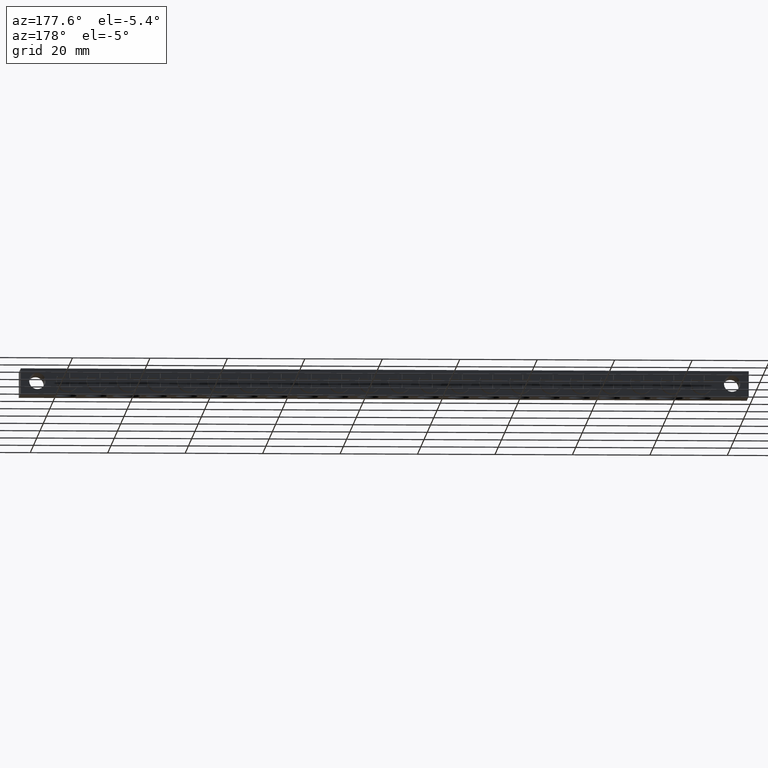
[diagram: clean part render]
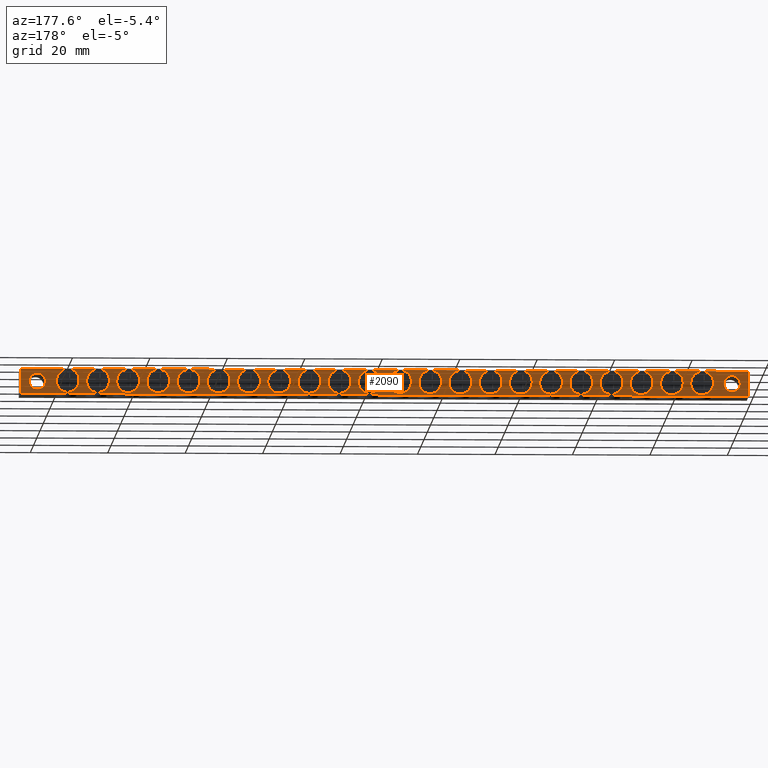
[diagram: same view with one face highlighted and labeled with its STEP entity id]
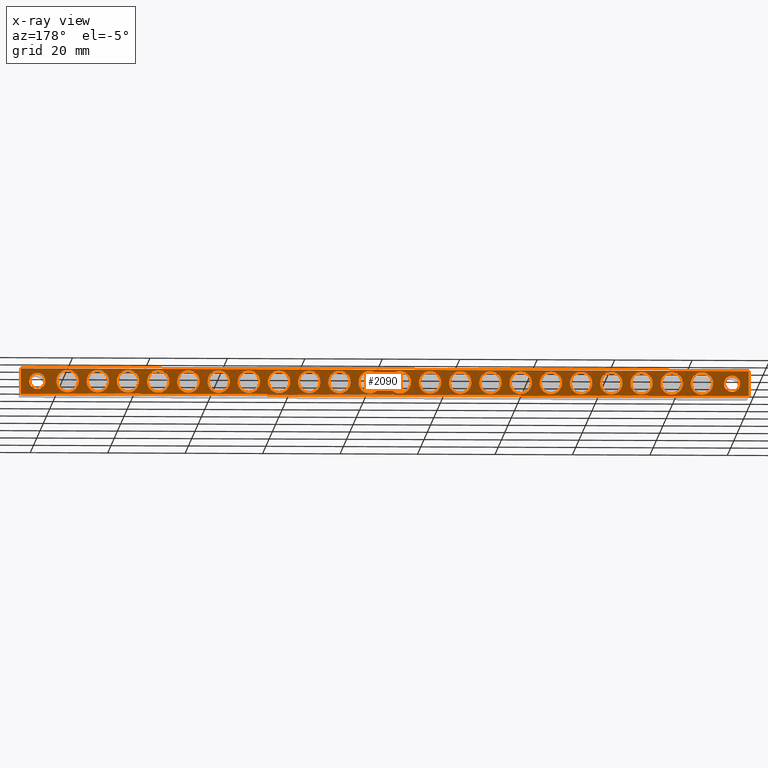
[diagram: x-ray of the same camera — body ghosted, the highlighted face saturated]
A machine part, auxiliary view. The second image highlights one B-rep face of the part: STEP entity #2090.
The next image is the same camera in x-ray: the body ghosted, the highlighted face saturated — about 0% of this face is hidden behind the body in this view.
In plain terms, the highlighted planar face has unit normal (0, -1, 0).
Its self-contained STEP definition (entity closure, byte-faithful):
#426 = ORIENTED_EDGE ( 'NONE', *, *, #9454, .F. ) ;
#444 = ORIENTED_EDGE ( 'NONE', *, *, #3081, .F. ) ;
#452 = AXIS2_PLACEMENT_3D ( 'NONE', #12441, #12443, #12444 ) ;
#474 = ORIENTED_EDGE ( 'NONE', *, *, #9441, .F. ) ;
#481 = ORIENTED_EDGE ( 'NONE', *, *, #3045, .F. ) ;
#508 = ORIENTED_EDGE ( 'NONE', *, *, #3189, .F. ) ;
#507 = CIRCLE ( 'NONE', #528, 2.899999999999999900 ) ;
#517 = ORIENTED_EDGE ( 'NONE', *, *, #3142, .F. ) ;
#519 = ORIENTED_EDGE ( 'NONE', *, *, #3058, .F. ) ;
#520 = CIRCLE ( 'NONE', #452, 2.899999999999999900 ) ;
#521 = ORIENTED_EDGE ( 'NONE', *, *, #3037, .F. ) ;
#522 = ORIENTED_EDGE ( 'NONE', *, *, #3151, .F. ) ;
#526 = ORIENTED_EDGE ( 'NONE', *, *, #3196, .F. ) ;
#527 = ORIENTED_EDGE ( 'NONE', *, *, #3183, .F. ) ;
#528 = AXIS2_PLACEMENT_3D ( 'NONE', #12495, #12454, #12486 ) ;
#530 = ORIENTED_EDGE ( 'NONE', *, *, #3033, .F. ) ;
#545 = ORIENTED_EDGE ( 'NONE', *, *, #3005, .F. ) ;
#546 = ORIENTED_EDGE ( 'NONE', *, *, #3132, .F. ) ;
#551 = ORIENTED_EDGE ( 'NONE', *, *, #9438, .F. ) ;
#567 = ORIENTED_EDGE ( 'NONE', *, *, #3060, .F. ) ;
#625 = CIRCLE ( 'NONE', #631, 2.899999999999999900 ) ;
#631 = AXIS2_PLACEMENT_3D ( 'NONE', #12652, #12609, #12659 ) ;
#708 = ORIENTED_EDGE ( 'NONE', *, *, #2484, .F. ) ;
#709 = ORIENTED_EDGE ( 'NONE', *, *, #3063, .F. ) ;
#720 = ORIENTED_EDGE ( 'NONE', *, *, #3080, .F. ) ;
#722 = ORIENTED_EDGE ( 'NONE', *, *, #9418, .F. ) ;
#737 = ORIENTED_EDGE ( 'NONE', *, *, #9437, .F. ) ;
#740 = ORIENTED_EDGE ( 'NONE', *, *, #2229, .F. ) ;
#743 = ORIENTED_EDGE ( 'NONE', *, *, #2455, .F. ) ;
#742 = AXIS2_PLACEMENT_3D ( 'NONE', #6290, #6258, #6285 ) ;
#744 = ORIENTED_EDGE ( 'NONE', *, *, #2537, .F. ) ;
#746 = ORIENTED_EDGE ( 'NONE', *, *, #9433, .F. ) ;
#751 = ORIENTED_EDGE ( 'NONE', *, *, #9430, .F. ) ;
#756 = ORIENTED_EDGE ( 'NONE', *, *, #9435, .F. ) ;
#759 = ORIENTED_EDGE ( 'NONE', *, *, #9455, .F. ) ;
#760 = AXIS2_PLACEMENT_3D ( 'NONE', #6241, #6233, #6242 ) ;
#762 = CIRCLE ( 'NONE', #742, 2.899999999999999900 ) ;
#763 = ORIENTED_EDGE ( 'NONE', *, *, #2521, .F. ) ;
#765 = ORIENTED_EDGE ( 'NONE', *, *, #9426, .F. ) ;
#769 = ORIENTED_EDGE ( 'NONE', *, *, #9406, .F. ) ;
#771 = ORIENTED_EDGE ( 'NONE', *, *, #9411, .F. ) ;
#773 = ORIENTED_EDGE ( 'NONE', *, *, #9409, .T. ) ;
#774 = ORIENTED_EDGE ( 'NONE', *, *, #9459, .F. ) ;
#775 = ORIENTED_EDGE ( 'NONE', *, *, #2425, .F. ) ;
#776 = ORIENTED_EDGE ( 'NONE', *, *, #9449, .F. ) ;
#777 = CIRCLE ( 'NONE', #760, 2.899999999999999900 ) ;
#778 = ORIENTED_EDGE ( 'NONE', *, *, #2515, .F. ) ;
#779 = ORIENTED_EDGE ( 'NONE', *, *, #9408, .T. ) ;
#781 = ORIENTED_EDGE ( 'NONE', *, *, #9436, .F. ) ;
#783 = ORIENTED_EDGE ( 'NONE', *, *, #2489, .F. ) ;
#785 = ORIENTED_EDGE ( 'NONE', *, *, #9421, .F. ) ;
#787 = ORIENTED_EDGE ( 'NONE', *, *, #2260, .F. ) ;
#789 = ORIENTED_EDGE ( 'NONE', *, *, #3198, .F. ) ;
#791 = ORIENTED_EDGE ( 'NONE', *, *, #9452, .F. ) ;
#792 = ORIENTED_EDGE ( 'NONE', *, *, #9432, .F. ) ;
#794 = ORIENTED_EDGE ( 'NONE', *, *, #3115, .F. ) ;
#796 = ORIENTED_EDGE ( 'NONE', *, *, #3091, .F. ) ;
#799 = ORIENTED_EDGE ( 'NONE', *, *, #9428, .F. ) ;
#801 = ORIENTED_EDGE ( 'NONE', *, *, #9399, .F. ) ;
#816 = ORIENTED_EDGE ( 'NONE', *, *, #9417, .F. ) ;
#817 = ORIENTED_EDGE ( 'NONE', *, *, #3104, .F. ) ;
#829 = ORIENTED_EDGE ( 'NONE', *, *, #2558, .F. ) ;
#882 = EDGE_LOOP ( 'NONE', ( #776, #740 ) ) ;
#899 = EDGE_LOOP ( 'NONE', ( #775, #791 ) ) ;
#903 = EDGE_LOOP ( 'NONE', ( #481, #522 ) ) ;
#911 = EDGE_LOOP ( 'NONE', ( #765, #787 ) ) ;
#913 = EDGE_LOOP ( 'NONE', ( #708, #751 ) ) ;
#915 = EDGE_LOOP ( 'NONE', ( #796, #737 ) ) ;
#918 = EDGE_LOOP ( 'NONE', ( #817, #759 ) ) ;
#921 = EDGE_LOOP ( 'NONE', ( #521, #527 ) ) ;
#924 = EDGE_LOOP ( 'NONE', ( #519, #526 ) ) ;
#926 = EDGE_LOOP ( 'NONE', ( #778, #769 ) ) ;
#927 = EDGE_LOOP ( 'NONE', ( #709, #746 ) ) ;
#928 = EDGE_LOOP ( 'NONE', ( #545, #517 ) ) ;
#929 = EDGE_LOOP ( 'NONE', ( #794, #816 ) ) ;
#932 = EDGE_LOOP ( 'NONE', ( #546, #474 ) ) ;
#934 = EDGE_LOOP ( 'NONE', ( #530, #551 ) ) ;
#936 = EDGE_LOOP ( 'NONE', ( #720, #801 ) ) ;
#937 = EDGE_LOOP ( 'NONE', ( #744, #799 ) ) ;
#938 = EDGE_LOOP ( 'NONE', ( #829, #756 ) ) ;
#941 = EDGE_LOOP ( 'NONE', ( #779, #781, #722, #773 ) ) ;
#948 = EDGE_LOOP ( 'NONE', ( #743, #774 ) ) ;
#950 = EDGE_LOOP ( 'NONE', ( #789, #771 ) ) ;
#952 = EDGE_LOOP ( 'NONE', ( #567, #508 ) ) ;
#954 = EDGE_LOOP ( 'NONE', ( #783, #785 ) ) ;
#955 = EDGE_LOOP ( 'NONE', ( #763, #792 ) ) ;
#958 = EDGE_LOOP ( 'NONE', ( #444, #426 ) ) ;
#1385 = VERTEX_POINT ( 'NONE', #11010 ) ;
#1426 = VERTEX_POINT ( 'NONE', #11001 ) ;
#1440 = VERTEX_POINT ( 'NONE', #11087 ) ;
#1442 = VERTEX_POINT ( 'NONE', #11079 ) ;
#1685 = CIRCLE ( 'NONE', #1697, 2.899999999999999900 ) ;
#1697 = AXIS2_PLACEMENT_3D ( 'NONE', #12774, #12827, #12757 ) ;
#2090 = ADVANCED_FACE ( 'NONE', ( #10175, #10137, #10156, #10159, #10153, #10154, #10141, #10157, #10167, #10169, #10171, #10155, #10165, #10168, #10170, #10172, #10160, #10174, #10176, #10177, #10125, #10200, #10223, #10203, #10219 ), #10213, .F. ) ;
#2229 = EDGE_CURVE ( 'NONE', #10701, #10736, #7102, .T. ) ;
#2260 = EDGE_CURVE ( 'NONE', #10677, #10725, #7163, .T. ) ;
#2425 = EDGE_CURVE ( 'NONE', #10898, #10908, #6984, .T. ) ;
#2455 = EDGE_CURVE ( 'NONE', #10921, #10895, #6990, .T. ) ;
#2484 = EDGE_CURVE ( 'NONE', #10914, #10855, #777, .T. ) ;
#2489 = EDGE_CURVE ( 'NONE', #10842, #10834, #762, .T. ) ;
#2515 = EDGE_CURVE ( 'NONE', #10862, #10841, #520, .T. ) ;
#2521 = EDGE_CURVE ( 'NONE', #10927, #10849, #507, .T. ) ;
#2537 = EDGE_CURVE ( 'NONE', #10847, #10826, #625, .T. ) ;
#2558 = EDGE_CURVE ( 'NONE', #10803, #10814, #1685, .T. ) ;
#3005 = EDGE_CURVE ( 'NONE', #10727, #10783, #4612, .T. ) ;
#3033 = EDGE_CURVE ( 'NONE', #10761, #10744, #4643, .T. ) ;
#3037 = EDGE_CURVE ( 'NONE', #10740, #10750, #4659, .T. ) ;
#3045 = EDGE_CURVE ( 'NONE', #10728, #10769, #4703, .T. ) ;
#3058 = EDGE_CURVE ( 'NONE', #10679, #10723, #4673, .T. ) ;
#3060 = EDGE_CURVE ( 'NONE', #10737, #10770, #4705, .T. ) ;
#3063 = EDGE_CURVE ( 'NONE', #10813, #10760, #4706, .T. ) ;
#3080 = EDGE_CURVE ( 'NONE', #10815, #10818, #4696, .T. ) ;
#3081 = EDGE_CURVE ( 'NONE', #10739, #10798, #4700, .T. ) ;
#3091 = EDGE_CURVE ( 'NONE', #10856, #10812, #4724, .T. ) ;
#3104 = EDGE_CURVE ( 'NONE', #10823, #10793, #4728, .T. ) ;
#3115 = EDGE_CURVE ( 'NONE', #10753, #10775, #4766, .T. ) ;
#3132 = EDGE_CURVE ( 'NONE', #10773, #10850, #4774, .T. ) ;
#3142 = EDGE_CURVE ( 'NONE', #10783, #10727, #4783, .T. ) ;
#3151 = EDGE_CURVE ( 'NONE', #10769, #10728, #4780, .T. ) ;
#3183 = EDGE_CURVE ( 'NONE', #10750, #10740, #4357, .T. ) ;
#3189 = EDGE_CURVE ( 'NONE', #10770, #10737, #4311, .T. ) ;
#3196 = EDGE_CURVE ( 'NONE', #10723, #10679, #4348, .T. ) ;
#3198 = EDGE_CURVE ( 'NONE', #10854, #10805, #4313, .T. ) ;
#4308 = AXIS2_PLACEMENT_3D ( 'NONE', #12060, #12062, #12089 ) ;
#4311 = CIRCLE ( 'NONE', #4332, 2.899999999999999900 ) ;
#4313 = CIRCLE ( 'NONE', #4365, 2.899999999999999900 ) ;
#4332 = AXIS2_PLACEMENT_3D ( 'NONE', #12002, #12035, #12022 ) ;
#4348 = CIRCLE ( 'NONE', #4308, 2.899999999999999900 ) ;
#4357 = CIRCLE ( 'NONE', #4363, 2.899999999999999900 ) ;
#4363 = AXIS2_PLACEMENT_3D ( 'NONE', #11951, #11952, #11954 ) ;
#4365 = AXIS2_PLACEMENT_3D ( 'NONE', #12046, #12091, #12077 ) ;
#4612 = CIRCLE ( 'NONE', #4624, 2.899999999999999900 ) ;
#4624 = AXIS2_PLACEMENT_3D ( 'NONE', #12371, #12351, #12333 ) ;
#4629 = AXIS2_PLACEMENT_3D ( 'NONE', #12548, #12553, #12530 ) ;
#4643 = CIRCLE ( 'NONE', #4652, 2.899999999999999900 ) ;
#4652 = AXIS2_PLACEMENT_3D ( 'NONE', #12478, #12453, #12480 ) ;
#4659 = CIRCLE ( 'NONE', #4629, 2.899999999999999900 ) ;
#4664 = AXIS2_PLACEMENT_3D ( 'NONE', #12689, #12677, #12742 ) ;
#4668 = AXIS2_PLACEMENT_3D ( 'NONE', #12551, #12569, #12525 ) ;
#4673 = CIRCLE ( 'NONE', #4674, 2.899999999999999900 ) ;
#4674 = AXIS2_PLACEMENT_3D ( 'NONE', #12641, #12593, #12637 ) ;
#4686 = AXIS2_PLACEMENT_3D ( 'NONE', #12657, #12597, #12660 ) ;
#4696 = CIRCLE ( 'NONE', #4699, 2.899999999999999900 ) ;
#4699 = AXIS2_PLACEMENT_3D ( 'NONE', #12759, #12784, #12766 ) ;
#4700 = CIRCLE ( 'NONE', #4701, 2.899999999999999900 ) ;
#4701 = AXIS2_PLACEMENT_3D ( 'NONE', #12765, #12791, #12793 ) ;
#4703 = CIRCLE ( 'NONE', #4668, 2.899999999999999900 ) ;
#4705 = CIRCLE ( 'NONE', #4686, 2.899999999999999900 ) ;
#4706 = CIRCLE ( 'NONE', #4664, 2.899999999999999900 ) ;
#4721 = AXIS2_PLACEMENT_3D ( 'NONE', #11739, #11721, #11726 ) ;
#4724 = CIRCLE ( 'NONE', #4729, 2.899999999999999900 ) ;
#4728 = CIRCLE ( 'NONE', #4751, 2.899999999999999900 ) ;
#4729 = AXIS2_PLACEMENT_3D ( 'NONE', #11649, #11630, #11646 ) ;
#4751 = AXIS2_PLACEMENT_3D ( 'NONE', #11679, #11673, #11680 ) ;
#4766 = CIRCLE ( 'NONE', #4721, 2.899999999999999900 ) ;
#4774 = CIRCLE ( 'NONE', #4788, 2.899999999999999900 ) ;
#4780 = CIRCLE ( 'NONE', #4813, 2.899999999999999900 ) ;
#4783 = CIRCLE ( 'NONE', #4826, 2.899999999999999900 ) ;
#4788 = AXIS2_PLACEMENT_3D ( 'NONE', #11781, #11766, #11792 ) ;
#4813 = AXIS2_PLACEMENT_3D ( 'NONE', #11893, #11885, #11889 ) ;
#4826 = AXIS2_PLACEMENT_3D ( 'NONE', #11821, #11812, #11827 ) ;
#5053 = DIRECTION ( 'NONE',  ( 0.0000000000000000000, 0.0000000000000000000, 1.000000000000000000 ) ) ;
#5062 = CARTESIAN_POINT ( 'NONE',  ( 4.299999999999998000, 12.00000000000000000, 3.250000000000034600 ) ) ;
#5064 = DIRECTION ( 'NONE',  ( 0.0000000000000000000, 1.000000000000000000, 0.0000000000000000000 ) ) ;
#5153 = DIRECTION ( 'NONE',  ( 0.0000000000000000000, 0.0000000000000000000, -1.000000000000000000 ) ) ;
#5194 = CARTESIAN_POINT ( 'NONE',  ( 183.6999999999999900, 12.00000000000000000, 3.250000000000012400 ) ) ;
#5195 = DIRECTION ( 'NONE',  ( -0.0000000000000000000, 1.000000000000000000, -0.0000000000000000000 ) ) ;
#5743 = AXIS2_PLACEMENT_3D ( 'NONE', #10179, #10201, #10205 ) ;
#5972 = DIRECTION ( 'NONE',  ( -0.0000000000000000000, 1.000000000000000000, -0.0000000000000000000 ) ) ;
#5982 = CARTESIAN_POINT ( 'NONE',  ( 175.9000000000000100, 12.00000000000000000, 3.249999999999990200 ) ) ;
#5987 = DIRECTION ( 'NONE',  ( 0.0000000000000000000, 0.0000000000000000000, -1.000000000000000000 ) ) ;
#6105 = CARTESIAN_POINT ( 'NONE',  ( 168.0999999999999900, 12.00000000000000000, 3.249999999999990200 ) ) ;
#6106 = DIRECTION ( 'NONE',  ( 0.0000000000000000000, 0.0000000000000000000, -1.000000000000000000 ) ) ;
#6118 = DIRECTION ( 'NONE',  ( -0.0000000000000000000, 1.000000000000000000, -0.0000000000000000000 ) ) ;
#6233 = DIRECTION ( 'NONE',  ( -0.0000000000000000000, 1.000000000000000000, -0.0000000000000000000 ) ) ;
#6241 = CARTESIAN_POINT ( 'NONE',  ( 136.9000000000000100, 12.00000000000000000, 3.249999999999990200 ) ) ;
#6242 = DIRECTION ( 'NONE',  ( 0.0000000000000000000, 0.0000000000000000000, -1.000000000000000000 ) ) ;
#6258 = DIRECTION ( 'NONE',  ( -0.0000000000000000000, 1.000000000000000000, -0.0000000000000000000 ) ) ;
#6285 = DIRECTION ( 'NONE',  ( 0.0000000000000000000, 0.0000000000000000000, -1.000000000000000000 ) ) ;
#6290 = CARTESIAN_POINT ( 'NONE',  ( 144.6999999999999900, 12.00000000000000000, 3.249999999999990200 ) ) ;
#6984 = CIRCLE ( 'NONE', #6985, 2.899999999999999900 ) ;
#6985 = AXIS2_PLACEMENT_3D ( 'NONE', #5982, #5972, #5987 ) ;
#6990 = CIRCLE ( 'NONE', #7017, 2.899999999999999900 ) ;
#7017 = AXIS2_PLACEMENT_3D ( 'NONE', #6105, #6118, #6106 ) ;
#7102 = CIRCLE ( 'NONE', #7108, 2.100000000000000500 ) ;
#7108 = AXIS2_PLACEMENT_3D ( 'NONE', #5062, #5064, #5053 ) ;
#7163 = CIRCLE ( 'NONE', #7164, 2.099999999999989900 ) ;
#7164 = AXIS2_PLACEMENT_3D ( 'NONE', #5194, #5195, #5153 ) ;
#9399 = EDGE_CURVE ( 'NONE', #10818, #10815, #14105, .T. ) ;
#9406 = EDGE_CURVE ( 'NONE', #10841, #10862, #14063, .T. ) ;
#9408 = EDGE_CURVE ( 'NONE', #1440, #1426, #13964, .T. ) ;
#9409 = EDGE_CURVE ( 'NONE', #1385, #1440, #13933, .T. ) ;
#9411 = EDGE_CURVE ( 'NONE', #10805, #10854, #14051, .T. ) ;
#9417 = EDGE_CURVE ( 'NONE', #10775, #10753, #14096, .T. ) ;
#9418 = EDGE_CURVE ( 'NONE', #1385, #1442, #13996, .T. ) ;
#9421 = EDGE_CURVE ( 'NONE', #10834, #10842, #14153, .T. ) ;
#9426 = EDGE_CURVE ( 'NONE', #10725, #10677, #14127, .T. ) ;
#9428 = EDGE_CURVE ( 'NONE', #10826, #10847, #14125, .T. ) ;
#9430 = EDGE_CURVE ( 'NONE', #10855, #10914, #14135, .T. ) ;
#9432 = EDGE_CURVE ( 'NONE', #10849, #10927, #14108, .T. ) ;
#9433 = EDGE_CURVE ( 'NONE', #10760, #10813, #14154, .T. ) ;
#9435 = EDGE_CURVE ( 'NONE', #10814, #10803, #14148, .T. ) ;
#9436 = EDGE_CURVE ( 'NONE', #1442, #1426, #14016, .T. ) ;
#9437 = EDGE_CURVE ( 'NONE', #10812, #10856, #14166, .T. ) ;
#9438 = EDGE_CURVE ( 'NONE', #10744, #10761, #14132, .T. ) ;
#9441 = EDGE_CURVE ( 'NONE', #10850, #10773, #14119, .T. ) ;
#9449 = EDGE_CURVE ( 'NONE', #10736, #10701, #14115, .T. ) ;
#9452 = EDGE_CURVE ( 'NONE', #10908, #10898, #14122, .T. ) ;
#9454 = EDGE_CURVE ( 'NONE', #10798, #10739, #14152, .T. ) ;
#9455 = EDGE_CURVE ( 'NONE', #10793, #10823, #14189, .T. ) ;
#9459 = EDGE_CURVE ( 'NONE', #10895, #10921, #14176, .T. ) ;
#10125 = FACE_BOUND ( 'NONE', #921, .T. ) ;
#10137 = FACE_BOUND ( 'NONE', #882, .T. ) ;
#10141 = FACE_BOUND ( 'NONE', #937, .T. ) ;
#10153 = FACE_BOUND ( 'NONE', #948, .T. ) ;
#10154 = FACE_BOUND ( 'NONE', #926, .T. ) ;
#10155 = FACE_BOUND ( 'NONE', #950, .T. ) ;
#10156 = FACE_OUTER_BOUND ( 'NONE', #941, .T. ) ;
#10157 = FACE_BOUND ( 'NONE', #954, .T. ) ;
#10159 = FACE_BOUND ( 'NONE', #899, .T. ) ;
#10160 = FACE_BOUND ( 'NONE', #915, .T. ) ;
#10165 = FACE_BOUND ( 'NONE', #927, .T. ) ;
#10167 = FACE_BOUND ( 'NONE', #913, .T. ) ;
#10168 = FACE_BOUND ( 'NONE', #936, .T. ) ;
#10169 = FACE_BOUND ( 'NONE', #955, .T. ) ;
#10170 = FACE_BOUND ( 'NONE', #929, .T. ) ;
#10171 = FACE_BOUND ( 'NONE', #938, .T. ) ;
#10172 = FACE_BOUND ( 'NONE', #918, .T. ) ;
#10174 = FACE_BOUND ( 'NONE', #932, .T. ) ;
#10175 = FACE_BOUND ( 'NONE', #911, .T. ) ;
#10176 = FACE_BOUND ( 'NONE', #958, .T. ) ;
#10177 = FACE_BOUND ( 'NONE', #934, .T. ) ;
#10179 = CARTESIAN_POINT ( 'NONE',  ( 0.0000000000000000000, 12.00000000000000000, 6.500000000000000000 ) ) ;
#10200 = FACE_BOUND ( 'NONE', #928, .T. ) ;
#10201 = DIRECTION ( 'NONE',  ( 0.0000000000000000000, -1.000000000000000000, 0.0000000000000000000 ) ) ;
#10203 = FACE_BOUND ( 'NONE', #924, .T. ) ;
#10205 = DIRECTION ( 'NONE',  ( 0.0000000000000000000, -0.0000000000000000000, -1.000000000000000000 ) ) ;
#10213 = PLANE ( 'NONE',  #5743 ) ;
#10219 = FACE_BOUND ( 'NONE', #952, .T. ) ;
#10223 = FACE_BOUND ( 'NONE', #903, .T. ) ;
#10677 = VERTEX_POINT ( 'NONE', #13067 ) ;
#10679 = VERTEX_POINT ( 'NONE', #13091 ) ;
#10701 = VERTEX_POINT ( 'NONE', #13107 ) ;
#10723 = VERTEX_POINT ( 'NONE', #13083 ) ;
#10725 = VERTEX_POINT ( 'NONE', #13076 ) ;
#10727 = VERTEX_POINT ( 'NONE', #13080 ) ;
#10728 = VERTEX_POINT ( 'NONE', #13081 ) ;
#10736 = VERTEX_POINT ( 'NONE', #13097 ) ;
#10737 = VERTEX_POINT ( 'NONE', #13098 ) ;
#10739 = VERTEX_POINT ( 'NONE', #13152 ) ;
#10740 = VERTEX_POINT ( 'NONE', #13141 ) ;
#10744 = VERTEX_POINT ( 'NONE', #13122 ) ;
#10750 = VERTEX_POINT ( 'NONE', #13121 ) ;
#10753 = VERTEX_POINT ( 'NONE', #13151 ) ;
#10760 = VERTEX_POINT ( 'NONE', #13138 ) ;
#10761 = VERTEX_POINT ( 'NONE', #13142 ) ;
#10769 = VERTEX_POINT ( 'NONE', #13140 ) ;
#10770 = VERTEX_POINT ( 'NONE', #13134 ) ;
#10773 = VERTEX_POINT ( 'NONE', #13173 ) ;
#10775 = VERTEX_POINT ( 'NONE', #13168 ) ;
#10783 = VERTEX_POINT ( 'NONE', #13125 ) ;
#10793 = VERTEX_POINT ( 'NONE', #13137 ) ;
#10798 = VERTEX_POINT ( 'NONE', #13179 ) ;
#10803 = VERTEX_POINT ( 'NONE', #13680 ) ;
#10805 = VERTEX_POINT ( 'NONE', #13861 ) ;
#10812 = VERTEX_POINT ( 'NONE', #14232 ) ;
#10813 = VERTEX_POINT ( 'NONE', #14216 ) ;
#10814 = VERTEX_POINT ( 'NONE', #14270 ) ;
#10815 = VERTEX_POINT ( 'NONE', #14229 ) ;
#10818 = VERTEX_POINT ( 'NONE', #14259 ) ;
#10823 = VERTEX_POINT ( 'NONE', #14235 ) ;
#10826 = VERTEX_POINT ( 'NONE', #14223 ) ;
#10834 = VERTEX_POINT ( 'NONE', #14244 ) ;
#10841 = VERTEX_POINT ( 'NONE', #14215 ) ;
#10842 = VERTEX_POINT ( 'NONE', #14243 ) ;
#10847 = VERTEX_POINT ( 'NONE', #14238 ) ;
#10849 = VERTEX_POINT ( 'NONE', #14265 ) ;
#10850 = VERTEX_POINT ( 'NONE', #14269 ) ;
#10854 = VERTEX_POINT ( 'NONE', #14236 ) ;
#10855 = VERTEX_POINT ( 'NONE', #14218 ) ;
#10856 = VERTEX_POINT ( 'NONE', #14246 ) ;
#10862 = VERTEX_POINT ( 'NONE', #14221 ) ;
#10895 = VERTEX_POINT ( 'NONE', #14309 ) ;
#10898 = VERTEX_POINT ( 'NONE', #14328 ) ;
#10908 = VERTEX_POINT ( 'NONE', #14337 ) ;
#10914 = VERTEX_POINT ( 'NONE', #14340 ) ;
#10921 = VERTEX_POINT ( 'NONE', #14288 ) ;
#10927 = VERTEX_POINT ( 'NONE', #14322 ) ;
#11001 = CARTESIAN_POINT ( 'NONE',  ( 0.0000000000000000000, 12.00000000000000000, 0.0000000000000000000 ) ) ;
#11010 = CARTESIAN_POINT ( 'NONE',  ( 188.0000000000000000, 12.00000000000000000, 6.500000000000000000 ) ) ;
#11079 = CARTESIAN_POINT ( 'NONE',  ( 0.0000000000000000000, 12.00000000000000000, 6.500000000000000000 ) ) ;
#11087 = CARTESIAN_POINT ( 'NONE',  ( 188.0000000000000000, 12.00000000000000000, 0.0000000000000000000 ) ) ;
#11630 = DIRECTION ( 'NONE',  ( -0.0000000000000000000, 1.000000000000000000, -0.0000000000000000000 ) ) ;
#11646 = DIRECTION ( 'NONE',  ( 0.0000000000000000000, 0.0000000000000000000, -1.000000000000000000 ) ) ;
#11649 = CARTESIAN_POINT ( 'NONE',  ( 74.50000000000001400, 12.00000000000000000, 3.249999999999990200 ) ) ;
#11673 = DIRECTION ( 'NONE',  ( -0.0000000000000000000, 1.000000000000000000, -0.0000000000000000000 ) ) ;
#11679 = CARTESIAN_POINT ( 'NONE',  ( 82.30000000000001100, 12.00000000000000000, 3.249999999999990200 ) ) ;
#11680 = DIRECTION ( 'NONE',  ( 0.0000000000000000000, 0.0000000000000000000, -1.000000000000000000 ) ) ;
#11721 = DIRECTION ( 'NONE',  ( -0.0000000000000000000, 1.000000000000000000, -0.0000000000000000000 ) ) ;
#11726 = DIRECTION ( 'NONE',  ( 0.0000000000000000000, 0.0000000000000000000, -1.000000000000000000 ) ) ;
#11739 = CARTESIAN_POINT ( 'NONE',  ( 90.09999999999999400, 12.00000000000000000, 3.249999999999990200 ) ) ;
#11766 = DIRECTION ( 'NONE',  ( -0.0000000000000000000, 1.000000000000000000, -0.0000000000000000000 ) ) ;
#11781 = CARTESIAN_POINT ( 'NONE',  ( 66.70000000000000300, 12.00000000000000000, 3.249999999999990200 ) ) ;
#11792 = DIRECTION ( 'NONE',  ( 0.0000000000000000000, 0.0000000000000000000, -1.000000000000000000 ) ) ;
#11812 = DIRECTION ( 'NONE',  ( -0.0000000000000000000, 1.000000000000000000, -0.0000000000000000000 ) ) ;
#11821 = CARTESIAN_POINT ( 'NONE',  ( 35.50000000000000700, 12.00000000000000000, 3.249999999999990200 ) ) ;
#11827 = DIRECTION ( 'NONE',  ( -2.392722035830078900E-015, 0.0000000000000000000, -1.000000000000000000 ) ) ;
#11885 = DIRECTION ( 'NONE',  ( -0.0000000000000000000, 1.000000000000000000, -0.0000000000000000000 ) ) ;
#11889 = DIRECTION ( 'NONE',  ( -1.196361017915039400E-015, 0.0000000000000000000, -1.000000000000000000 ) ) ;
#11893 = CARTESIAN_POINT ( 'NONE',  ( 27.70000000000000300, 12.00000000000000000, 3.249999999999990200 ) ) ;
#11951 = CARTESIAN_POINT ( 'NONE',  ( 43.30000000000000400, 12.00000000000000000, 3.249999999999990200 ) ) ;
#11952 = DIRECTION ( 'NONE',  ( -0.0000000000000000000, 1.000000000000000000, -0.0000000000000000000 ) ) ;
#11954 = DIRECTION ( 'NONE',  ( -2.392722035830078900E-015, 0.0000000000000000000, -1.000000000000000000 ) ) ;
#12002 = CARTESIAN_POINT ( 'NONE',  ( 12.10000000000000000, 12.00000000000000000, 3.249999999999990200 ) ) ;
#12022 = DIRECTION ( 'NONE',  ( -1.794541526872559300E-015, 0.0000000000000000000, -1.000000000000000000 ) ) ;
#12035 = DIRECTION ( 'NONE',  ( -0.0000000000000000000, 1.000000000000000000, -0.0000000000000000000 ) ) ;
#12046 = CARTESIAN_POINT ( 'NONE',  ( 113.5000000000000000, 12.00000000000000000, 3.249999999999990200 ) ) ;
#12060 = CARTESIAN_POINT ( 'NONE',  ( 19.90000000000000200, 12.00000000000000000, 3.249999999999990200 ) ) ;
#12062 = DIRECTION ( 'NONE',  ( -0.0000000000000000000, 1.000000000000000000, -0.0000000000000000000 ) ) ;
#12077 = DIRECTION ( 'NONE',  ( 0.0000000000000000000, 0.0000000000000000000, -1.000000000000000000 ) ) ;
#12089 = DIRECTION ( 'NONE',  ( -1.196361017915039400E-015, 0.0000000000000000000, -1.000000000000000000 ) ) ;
#12091 = DIRECTION ( 'NONE',  ( -0.0000000000000000000, 1.000000000000000000, -0.0000000000000000000 ) ) ;
#12333 = DIRECTION ( 'NONE',  ( 0.0000000000000000000, 0.0000000000000000000, -1.000000000000000000 ) ) ;
#12351 = DIRECTION ( 'NONE',  ( -0.0000000000000000000, 1.000000000000000000, -0.0000000000000000000 ) ) ;
#12371 = CARTESIAN_POINT ( 'NONE',  ( 35.50000000000000700, 12.00000000000000000, 3.249999999999990200 ) ) ;
#12441 = CARTESIAN_POINT ( 'NONE',  ( 160.3000000000000100, 12.00000000000000000, 3.249999999999990200 ) ) ;
#12443 = DIRECTION ( 'NONE',  ( -0.0000000000000000000, 1.000000000000000000, -0.0000000000000000000 ) ) ;
#12444 = DIRECTION ( 'NONE',  ( 0.0000000000000000000, 0.0000000000000000000, -1.000000000000000000 ) ) ;
#12453 = DIRECTION ( 'NONE',  ( -0.0000000000000000000, 1.000000000000000000, -0.0000000000000000000 ) ) ;
#12454 = DIRECTION ( 'NONE',  ( -0.0000000000000000000, 1.000000000000000000, -0.0000000000000000000 ) ) ;
#12478 = CARTESIAN_POINT ( 'NONE',  ( 51.10000000000000900, 12.00000000000000000, 3.249999999999990200 ) ) ;
#12480 = DIRECTION ( 'NONE',  ( 0.0000000000000000000, 0.0000000000000000000, -1.000000000000000000 ) ) ;
#12486 = DIRECTION ( 'NONE',  ( 0.0000000000000000000, 0.0000000000000000000, -1.000000000000000000 ) ) ;
#12495 = CARTESIAN_POINT ( 'NONE',  ( 129.0999999999999900, 12.00000000000000000, 3.249999999999990200 ) ) ;
#12525 = DIRECTION ( 'NONE',  ( 0.0000000000000000000, 0.0000000000000000000, -1.000000000000000000 ) ) ;
#12530 = DIRECTION ( 'NONE',  ( 0.0000000000000000000, 0.0000000000000000000, -1.000000000000000000 ) ) ;
#12548 = CARTESIAN_POINT ( 'NONE',  ( 43.30000000000000400, 12.00000000000000000, 3.249999999999990200 ) ) ;
#12551 = CARTESIAN_POINT ( 'NONE',  ( 27.70000000000000300, 12.00000000000000000, 3.249999999999990200 ) ) ;
#12553 = DIRECTION ( 'NONE',  ( -0.0000000000000000000, 1.000000000000000000, -0.0000000000000000000 ) ) ;
#12569 = DIRECTION ( 'NONE',  ( -0.0000000000000000000, 1.000000000000000000, -0.0000000000000000000 ) ) ;
#12593 = DIRECTION ( 'NONE',  ( -0.0000000000000000000, 1.000000000000000000, -0.0000000000000000000 ) ) ;
#12597 = DIRECTION ( 'NONE',  ( -0.0000000000000000000, 1.000000000000000000, -0.0000000000000000000 ) ) ;
#12609 = DIRECTION ( 'NONE',  ( -0.0000000000000000000, 1.000000000000000000, -0.0000000000000000000 ) ) ;
#12637 = DIRECTION ( 'NONE',  ( 0.0000000000000000000, 0.0000000000000000000, -1.000000000000000000 ) ) ;
#12641 = CARTESIAN_POINT ( 'NONE',  ( 19.90000000000000200, 12.00000000000000000, 3.249999999999990200 ) ) ;
#12652 = CARTESIAN_POINT ( 'NONE',  ( 152.5000000000000000, 12.00000000000000000, 3.249999999999990200 ) ) ;
#12657 = CARTESIAN_POINT ( 'NONE',  ( 12.10000000000000000, 12.00000000000000000, 3.249999999999990200 ) ) ;
#12659 = DIRECTION ( 'NONE',  ( 0.0000000000000000000, 0.0000000000000000000, -1.000000000000000000 ) ) ;
#12660 = DIRECTION ( 'NONE',  ( 0.0000000000000000000, 0.0000000000000000000, -1.000000000000000000 ) ) ;
#12677 = DIRECTION ( 'NONE',  ( -0.0000000000000000000, 1.000000000000000000, -0.0000000000000000000 ) ) ;
#12689 = CARTESIAN_POINT ( 'NONE',  ( 105.7000000000000000, 12.00000000000000000, 3.249999999999990200 ) ) ;
#12742 = DIRECTION ( 'NONE',  ( 0.0000000000000000000, 0.0000000000000000000, -1.000000000000000000 ) ) ;
#12757 = DIRECTION ( 'NONE',  ( 0.0000000000000000000, 0.0000000000000000000, -1.000000000000000000 ) ) ;
#12759 = CARTESIAN_POINT ( 'NONE',  ( 97.90000000000000600, 12.00000000000000000, 3.249999999999990200 ) ) ;
#12765 = CARTESIAN_POINT ( 'NONE',  ( 58.90000000000000600, 12.00000000000000000, 3.249999999999990200 ) ) ;
#12766 = DIRECTION ( 'NONE',  ( 0.0000000000000000000, 0.0000000000000000000, -1.000000000000000000 ) ) ;
#12774 = CARTESIAN_POINT ( 'NONE',  ( 121.3000000000000100, 12.00000000000000000, 3.249999999999990200 ) ) ;
#12784 = DIRECTION ( 'NONE',  ( -0.0000000000000000000, 1.000000000000000000, -0.0000000000000000000 ) ) ;
#12791 = DIRECTION ( 'NONE',  ( -0.0000000000000000000, 1.000000000000000000, -0.0000000000000000000 ) ) ;
#12793 = DIRECTION ( 'NONE',  ( 0.0000000000000000000, 0.0000000000000000000, -1.000000000000000000 ) ) ;
#12827 = DIRECTION ( 'NONE',  ( -0.0000000000000000000, 1.000000000000000000, -0.0000000000000000000 ) ) ;
#12968 = DIRECTION ( 'NONE',  ( 0.0000000000000000000, 0.0000000000000000000, -1.000000000000000000 ) ) ;
#12971 = DIRECTION ( 'NONE',  ( -0.0000000000000000000, 1.000000000000000000, -0.0000000000000000000 ) ) ;
#12982 = CARTESIAN_POINT ( 'NONE',  ( 4.299999999999998000, 12.00000000000000000, 3.250000000000034600 ) ) ;
#12984 = DIRECTION ( 'NONE',  ( -0.0000000000000000000, 1.000000000000000000, -0.0000000000000000000 ) ) ;
#12985 = CARTESIAN_POINT ( 'NONE',  ( 66.70000000000000300, 12.00000000000000000, 3.249999999999990200 ) ) ;
#12986 = DIRECTION ( 'NONE',  ( -0.0000000000000000000, 1.000000000000000000, -0.0000000000000000000 ) ) ;
#12990 = CARTESIAN_POINT ( 'NONE',  ( 51.10000000000000900, 12.00000000000000000, 3.249999999999990200 ) ) ;
#12991 = CARTESIAN_POINT ( 'NONE',  ( 74.50000000000001400, 12.00000000000000000, 3.249999999999990200 ) ) ;
#12993 = DIRECTION ( 'NONE',  ( -2.392722035830078900E-015, 0.0000000000000000000, -1.000000000000000000 ) ) ;
#12996 = DIRECTION ( 'NONE',  ( 0.0000000000000000000, 1.000000000000000000, 0.0000000000000000000 ) ) ;
#12997 = DIRECTION ( 'NONE',  ( 0.0000000000000000000, 0.0000000000000000000, -1.000000000000000000 ) ) ;
#13002 = DIRECTION ( 'NONE',  ( -0.0000000000000000000, -0.0000000000000000000, -1.000000000000000000 ) ) ;
#13006 = DIRECTION ( 'NONE',  ( -0.0000000000000000000, 1.000000000000000000, -0.0000000000000000000 ) ) ;
#13010 = DIRECTION ( 'NONE',  ( -0.0000000000000000000, 1.000000000000000000, -0.0000000000000000000 ) ) ;
#13013 = DIRECTION ( 'NONE',  ( 0.0000000000000000000, 0.0000000000000000000, -1.000000000000000000 ) ) ;
#13016 = CARTESIAN_POINT ( 'NONE',  ( 168.0999999999999900, 12.00000000000000000, 3.249999999999990200 ) ) ;
#13020 = DIRECTION ( 'NONE',  ( -0.0000000000000000000, 1.000000000000000000, -0.0000000000000000000 ) ) ;
#13025 = CARTESIAN_POINT ( 'NONE',  ( 58.90000000000000600, 12.00000000000000000, 3.249999999999990200 ) ) ;
#13028 = CARTESIAN_POINT ( 'NONE',  ( 82.30000000000001100, 12.00000000000000000, 3.249999999999990200 ) ) ;
#13034 = DIRECTION ( 'NONE',  ( 0.0000000000000000000, 0.0000000000000000000, -1.000000000000000000 ) ) ;
#13035 = CARTESIAN_POINT ( 'NONE',  ( 175.9000000000000100, 12.00000000000000000, 3.249999999999990200 ) ) ;
#13039 = DIRECTION ( 'NONE',  ( -2.392722035830078900E-015, 0.0000000000000000000, -1.000000000000000000 ) ) ;
#13042 = DIRECTION ( 'NONE',  ( 0.0000000000000000000, 0.0000000000000000000, 1.000000000000000000 ) ) ;
#13044 = DIRECTION ( 'NONE',  ( 0.0000000000000000000, 0.0000000000000000000, -1.000000000000000000 ) ) ;
#13050 = DIRECTION ( 'NONE',  ( -0.0000000000000000000, 1.000000000000000000, -0.0000000000000000000 ) ) ;
#13067 = CARTESIAN_POINT ( 'NONE',  ( 183.6999999999999900, 12.00000000000000000, 1.150000000000022600 ) ) ;
#13076 = CARTESIAN_POINT ( 'NONE',  ( 183.6999999999999900, 12.00000000000000000, 5.350000000000002300 ) ) ;
#13080 = CARTESIAN_POINT ( 'NONE',  ( 35.49602292743709600, 12.00000000000000000, 6.149997272911437400 ) ) ;
#13081 = CARTESIAN_POINT ( 'NONE',  ( 27.69602292743709200, 12.00000000000000000, 6.149997272911437400 ) ) ;
#13083 = CARTESIAN_POINT ( 'NONE',  ( 19.90397707256291000, 12.00000000000000000, 0.3500027270885437400 ) ) ;
#13091 = CARTESIAN_POINT ( 'NONE',  ( 19.89602292743709100, 12.00000000000000000, 6.149997272911437400 ) ) ;
#13097 = CARTESIAN_POINT ( 'NONE',  ( 4.299999999999998000, 12.00000000000000000, 5.350000000000035200 ) ) ;
#13098 = CARTESIAN_POINT ( 'NONE',  ( 12.09602292743709000, 12.00000000000000000, 6.149997272911437400 ) ) ;
#13107 = CARTESIAN_POINT ( 'NONE',  ( 4.299999999999998000, 12.00000000000000000, 1.150000000000033900 ) ) ;
#13121 = CARTESIAN_POINT ( 'NONE',  ( 43.30397707256291500, 12.00000000000000000, 0.3500027270885437400 ) ) ;
#13122 = CARTESIAN_POINT ( 'NONE',  ( 51.10397707256291300, 12.00000000000000000, 0.3500027270885437400 ) ) ;
#13125 = CARTESIAN_POINT ( 'NONE',  ( 35.50397707256291100, 12.00000000000000000, 0.3500027270885437400 ) ) ;
#13134 = CARTESIAN_POINT ( 'NONE',  ( 12.10397707256290900, 12.00000000000000000, 0.3500027270885437400 ) ) ;
#13137 = CARTESIAN_POINT ( 'NONE',  ( 82.30397707256291500, 12.00000000000000000, 0.3500027270885433000 ) ) ;
#13138 = CARTESIAN_POINT ( 'NONE',  ( 105.7039770725629100, 12.00000000000000000, 0.3500027270885433000 ) ) ;
#13140 = CARTESIAN_POINT ( 'NONE',  ( 27.70397707256291000, 12.00000000000000000, 0.3500027270885437400 ) ) ;
#13141 = CARTESIAN_POINT ( 'NONE',  ( 43.29602292743709300, 12.00000000000000000, 6.149997272911437400 ) ) ;
#13142 = CARTESIAN_POINT ( 'NONE',  ( 51.09602292743709700, 12.00000000000000000, 6.149997272911437400 ) ) ;
#13151 = CARTESIAN_POINT ( 'NONE',  ( 90.09602292743709000, 12.00000000000000000, 6.149997272911437400 ) ) ;
#13152 = CARTESIAN_POINT ( 'NONE',  ( 58.89602292743710200, 12.00000000000000000, 6.149997272911437400 ) ) ;
#13168 = CARTESIAN_POINT ( 'NONE',  ( 90.10397707256289800, 12.00000000000000000, 0.3500027270885433000 ) ) ;
#13173 = CARTESIAN_POINT ( 'NONE',  ( 66.69602292743711300, 12.00000000000000000, 6.149997272911437400 ) ) ;
#13179 = CARTESIAN_POINT ( 'NONE',  ( 58.90397707256291700, 12.00000000000000000, 0.3500027270885437400 ) ) ;
#13680 = CARTESIAN_POINT ( 'NONE',  ( 121.2960229274371100, 12.00000000000000000, 6.149997272911437400 ) ) ;
#13861 = CARTESIAN_POINT ( 'NONE',  ( 113.5039770725629000, 12.00000000000000000, 0.3500027270885433000 ) ) ;
#13930 = CARTESIAN_POINT ( 'NONE',  ( 160.3000000000000100, 12.00000000000000000, 3.249999999999990200 ) ) ;
#13931 = DIRECTION ( 'NONE',  ( -0.0000000000000000000, 1.000000000000000000, -0.0000000000000000000 ) ) ;
#13933 = LINE ( 'NONE', #13958, #14075 ) ;
#13936 = CARTESIAN_POINT ( 'NONE',  ( 0.0000000000000000000, 12.00000000000000000, 0.0000000000000000000 ) ) ;
#13938 = DIRECTION ( 'NONE',  ( -0.0000000000000000000, -0.0000000000000000000, -1.000000000000000000 ) ) ;
#13939 = DIRECTION ( 'NONE',  ( 0.0000000000000000000, 0.0000000000000000000, -1.000000000000000000 ) ) ;
#13945 = DIRECTION ( 'NONE',  ( 0.0000000000000000000, 0.0000000000000000000, -1.000000000000000000 ) ) ;
#13947 = DIRECTION ( 'NONE',  ( -1.000000000000000000, -0.0000000000000000000, -0.0000000000000000000 ) ) ;
#13952 = CARTESIAN_POINT ( 'NONE',  ( 97.90000000000000600, 12.00000000000000000, 3.249999999999990200 ) ) ;
#13954 = DIRECTION ( 'NONE',  ( -0.0000000000000000000, 1.000000000000000000, -0.0000000000000000000 ) ) ;
#13958 = CARTESIAN_POINT ( 'NONE',  ( 188.0000000000000000, 12.00000000000000000, 6.500000000000000000 ) ) ;
#13964 = LINE ( 'NONE', #13936, #14077 ) ;
#13971 = DIRECTION ( 'NONE',  ( 0.0000000000000000000, 0.0000000000000000000, -1.000000000000000000 ) ) ;
#13974 = CARTESIAN_POINT ( 'NONE',  ( 0.0000000000000000000, 12.00000000000000000, 6.500000000000000000 ) ) ;
#13976 = DIRECTION ( 'NONE',  ( -0.0000000000000000000, 1.000000000000000000, -0.0000000000000000000 ) ) ;
#13977 = DIRECTION ( 'NONE',  ( 0.0000000000000000000, 0.0000000000000000000, -1.000000000000000000 ) ) ;
#13983 = DIRECTION ( 'NONE',  ( -1.000000000000000000, -0.0000000000000000000, -0.0000000000000000000 ) ) ;
#13984 = DIRECTION ( 'NONE',  ( -0.0000000000000000000, 1.000000000000000000, -0.0000000000000000000 ) ) ;
#13987 = CARTESIAN_POINT ( 'NONE',  ( 113.5000000000000000, 12.00000000000000000, 3.249999999999990200 ) ) ;
#13989 = DIRECTION ( 'NONE',  ( 0.0000000000000000000, 0.0000000000000000000, -1.000000000000000000 ) ) ;
#13996 = LINE ( 'NONE', #13974, #14114 ) ;
#13997 = CARTESIAN_POINT ( 'NONE',  ( 144.6999999999999900, 12.00000000000000000, 3.249999999999990200 ) ) ;
#13998 = DIRECTION ( 'NONE',  ( -0.0000000000000000000, 1.000000000000000000, -0.0000000000000000000 ) ) ;
#14001 = CARTESIAN_POINT ( 'NONE',  ( 90.09999999999999400, 12.00000000000000000, 3.249999999999990200 ) ) ;
#14007 = DIRECTION ( 'NONE',  ( -0.0000000000000000000, 1.000000000000000000, -0.0000000000000000000 ) ) ;
#14012 = DIRECTION ( 'NONE',  ( 0.0000000000000000000, 0.0000000000000000000, -1.000000000000000000 ) ) ;
#14013 = DIRECTION ( 'NONE',  ( -0.0000000000000000000, 1.000000000000000000, -0.0000000000000000000 ) ) ;
#14014 = CARTESIAN_POINT ( 'NONE',  ( 152.5000000000000000, 12.00000000000000000, 3.249999999999990200 ) ) ;
#14015 = DIRECTION ( 'NONE',  ( -0.0000000000000000000, 1.000000000000000000, -0.0000000000000000000 ) ) ;
#14016 = LINE ( 'NONE', #14033, #14121 ) ;
#14018 = DIRECTION ( 'NONE',  ( 0.0000000000000000000, 0.0000000000000000000, -1.000000000000000000 ) ) ;
#14021 = CARTESIAN_POINT ( 'NONE',  ( 105.7000000000000000, 12.00000000000000000, 3.249999999999990200 ) ) ;
#14023 = CARTESIAN_POINT ( 'NONE',  ( 136.9000000000000100, 12.00000000000000000, 3.249999999999990200 ) ) ;
#14025 = DIRECTION ( 'NONE',  ( -0.0000000000000000000, 1.000000000000000000, -0.0000000000000000000 ) ) ;
#14026 = DIRECTION ( 'NONE',  ( 0.0000000000000000000, 0.0000000000000000000, -1.000000000000000000 ) ) ;
#14027 = DIRECTION ( 'NONE',  ( 0.0000000000000000000, 0.0000000000000000000, -1.000000000000000000 ) ) ;
#14032 = DIRECTION ( 'NONE',  ( 0.0000000000000000000, 0.0000000000000000000, -1.000000000000000000 ) ) ;
#14033 = CARTESIAN_POINT ( 'NONE',  ( 0.0000000000000000000, 12.00000000000000000, 6.500000000000000000 ) ) ;
#14035 = CARTESIAN_POINT ( 'NONE',  ( 129.0999999999999900, 12.00000000000000000, 3.249999999999990200 ) ) ;
#14036 = DIRECTION ( 'NONE',  ( -0.0000000000000000000, 1.000000000000000000, -0.0000000000000000000 ) ) ;
#14038 = CARTESIAN_POINT ( 'NONE',  ( 121.3000000000000100, 12.00000000000000000, 3.249999999999990200 ) ) ;
#14040 = DIRECTION ( 'NONE',  ( 0.0000000000000000000, 0.0000000000000000000, -1.000000000000000000 ) ) ;
#14042 = CARTESIAN_POINT ( 'NONE',  ( 183.6999999999999900, 12.00000000000000000, 3.250000000000012400 ) ) ;
#14044 = DIRECTION ( 'NONE',  ( -0.0000000000000000000, 1.000000000000000000, -0.0000000000000000000 ) ) ;
#14051 = CIRCLE ( 'NONE', #14094, 2.899999999999999900 ) ;
#14063 = CIRCLE ( 'NONE', #14074, 2.899999999999999900 ) ;
#14073 = AXIS2_PLACEMENT_3D ( 'NONE', #13952, #13954, #13939 ) ;
#14074 = AXIS2_PLACEMENT_3D ( 'NONE', #13930, #13931, #13945 ) ;
#14075 = VECTOR ( 'NONE', #13938, 1000.000000000000000 ) ;
#14077 = VECTOR ( 'NONE', #13947, 1000.000000000000000 ) ;
#14094 = AXIS2_PLACEMENT_3D ( 'NONE', #13987, #13984, #13989 ) ;
#14096 = CIRCLE ( 'NONE', #14098, 2.899999999999999900 ) ;
#14098 = AXIS2_PLACEMENT_3D ( 'NONE', #14001, #13976, #13971 ) ;
#14105 = CIRCLE ( 'NONE', #14073, 2.899999999999999900 ) ;
#14106 = AXIS2_PLACEMENT_3D ( 'NONE', #12982, #12996, #13042 ) ;
#14108 = CIRCLE ( 'NONE', #14147, 2.899999999999999900 ) ;
#14114 = VECTOR ( 'NONE', #13983, 1000.000000000000000 ) ;
#14115 = CIRCLE ( 'NONE', #14106, 2.100000000000000500 ) ;
#14119 = CIRCLE ( 'NONE', #14140, 2.899999999999999900 ) ;
#14120 = AXIS2_PLACEMENT_3D ( 'NONE', #14023, #14007, #14040 ) ;
#14121 = VECTOR ( 'NONE', #13002, 1000.000000000000000 ) ;
#14122 = CIRCLE ( 'NONE', #14133, 2.899999999999999900 ) ;
#14123 = AXIS2_PLACEMENT_3D ( 'NONE', #13997, #13998, #13977 ) ;
#14124 = AXIS2_PLACEMENT_3D ( 'NONE', #14042, #14013, #14018 ) ;
#14125 = CIRCLE ( 'NONE', #14130, 2.899999999999999900 ) ;
#14127 = CIRCLE ( 'NONE', #14124, 2.099999999999989900 ) ;
#14130 = AXIS2_PLACEMENT_3D ( 'NONE', #14014, #14044, #14032 ) ;
#14132 = CIRCLE ( 'NONE', #14156, 2.899999999999999900 ) ;
#14133 = AXIS2_PLACEMENT_3D ( 'NONE', #13035, #13006, #13034 ) ;
#14135 = CIRCLE ( 'NONE', #14120, 2.899999999999999900 ) ;
#14140 = AXIS2_PLACEMENT_3D ( 'NONE', #12985, #12986, #12997 ) ;
#14141 = AXIS2_PLACEMENT_3D ( 'NONE', #14021, #14036, #14027 ) ;
#14144 = AXIS2_PLACEMENT_3D ( 'NONE', #12991, #12984, #12968 ) ;
#14147 = AXIS2_PLACEMENT_3D ( 'NONE', #14035, #14015, #14012 ) ;
#14148 = CIRCLE ( 'NONE', #14149, 2.899999999999999900 ) ;
#14149 = AXIS2_PLACEMENT_3D ( 'NONE', #14038, #14025, #14026 ) ;
#14152 = CIRCLE ( 'NONE', #14177, 2.899999999999999900 ) ;
#14153 = CIRCLE ( 'NONE', #14123, 2.899999999999999900 ) ;
#14154 = CIRCLE ( 'NONE', #14141, 2.899999999999999900 ) ;
#14156 = AXIS2_PLACEMENT_3D ( 'NONE', #12990, #12971, #12993 ) ;
#14166 = CIRCLE ( 'NONE', #14144, 2.899999999999999900 ) ;
#14173 = AXIS2_PLACEMENT_3D ( 'NONE', #13028, #13050, #13044 ) ;
#14176 = CIRCLE ( 'NONE', #14197, 2.899999999999999900 ) ;
#14177 = AXIS2_PLACEMENT_3D ( 'NONE', #13025, #13020, #13039 ) ;
#14189 = CIRCLE ( 'NONE', #14173, 2.899999999999999900 ) ;
#14197 = AXIS2_PLACEMENT_3D ( 'NONE', #13016, #13010, #13013 ) ;
#14215 = CARTESIAN_POINT ( 'NONE',  ( 160.3039770725629000, 12.00000000000000000, 0.3500027270885437400 ) ) ;
#14216 = CARTESIAN_POINT ( 'NONE',  ( 105.6960229274371000, 12.00000000000000000, 6.149997272911437400 ) ) ;
#14218 = CARTESIAN_POINT ( 'NONE',  ( 136.9039770725629200, 12.00000000000000000, 0.3500027270885437400 ) ) ;
#14221 = CARTESIAN_POINT ( 'NONE',  ( 160.2960229274370900, 12.00000000000000000, 6.149997272911437400 ) ) ;
#14223 = CARTESIAN_POINT ( 'NONE',  ( 152.5039770725629200, 12.00000000000000000, 0.3500027270885437400 ) ) ;
#14229 = CARTESIAN_POINT ( 'NONE',  ( 97.89602292743710200, 12.00000000000000000, 6.149997272911437400 ) ) ;
#14232 = CARTESIAN_POINT ( 'NONE',  ( 74.50397707256291800, 12.00000000000000000, 0.3500027270885433000 ) ) ;
#14235 = CARTESIAN_POINT ( 'NONE',  ( 82.29602292743710700, 12.00000000000000000, 6.149997272911437400 ) ) ;
#14236 = CARTESIAN_POINT ( 'NONE',  ( 113.4960229274371000, 12.00000000000000000, 6.149997272911437400 ) ) ;
#14238 = CARTESIAN_POINT ( 'NONE',  ( 152.4960229274370800, 12.00000000000000000, 6.149997272911437400 ) ) ;
#14243 = CARTESIAN_POINT ( 'NONE',  ( 144.6960229274370700, 12.00000000000000000, 6.149997272911437400 ) ) ;
#14244 = CARTESIAN_POINT ( 'NONE',  ( 144.7039770725629100, 12.00000000000000000, 0.3500027270885437400 ) ) ;
#14246 = CARTESIAN_POINT ( 'NONE',  ( 74.49602292743711000, 12.00000000000000000, 6.149997272911437400 ) ) ;
#14259 = CARTESIAN_POINT ( 'NONE',  ( 97.90397707256291000, 12.00000000000000000, 0.3500027270885433000 ) ) ;
#14265 = CARTESIAN_POINT ( 'NONE',  ( 129.1039770725629100, 12.00000000000000000, 0.3500027270885437400 ) ) ;
#14269 = CARTESIAN_POINT ( 'NONE',  ( 66.70397707256290700, 12.00000000000000000, 0.3500027270885433000 ) ) ;
#14270 = CARTESIAN_POINT ( 'NONE',  ( 121.3039770725629000, 12.00000000000000000, 0.3500027270885433000 ) ) ;
#14288 = CARTESIAN_POINT ( 'NONE',  ( 168.0960229274370800, 12.00000000000000000, 6.149997272911437400 ) ) ;
#14309 = CARTESIAN_POINT ( 'NONE',  ( 168.1039770725629100, 12.00000000000000000, 0.3500027270885437400 ) ) ;
#14322 = CARTESIAN_POINT ( 'NONE',  ( 129.0960229274370800, 12.00000000000000000, 6.149997272911437400 ) ) ;
#14328 = CARTESIAN_POINT ( 'NONE',  ( 175.8960229274370900, 12.00000000000000000, 6.149997272911437400 ) ) ;
#14337 = CARTESIAN_POINT ( 'NONE',  ( 175.9039770725629200, 12.00000000000000000, 0.3500027270885437400 ) ) ;
#14340 = CARTESIAN_POINT ( 'NONE',  ( 136.8960229274370900, 12.00000000000000000, 6.149997272911437400 ) ) ;